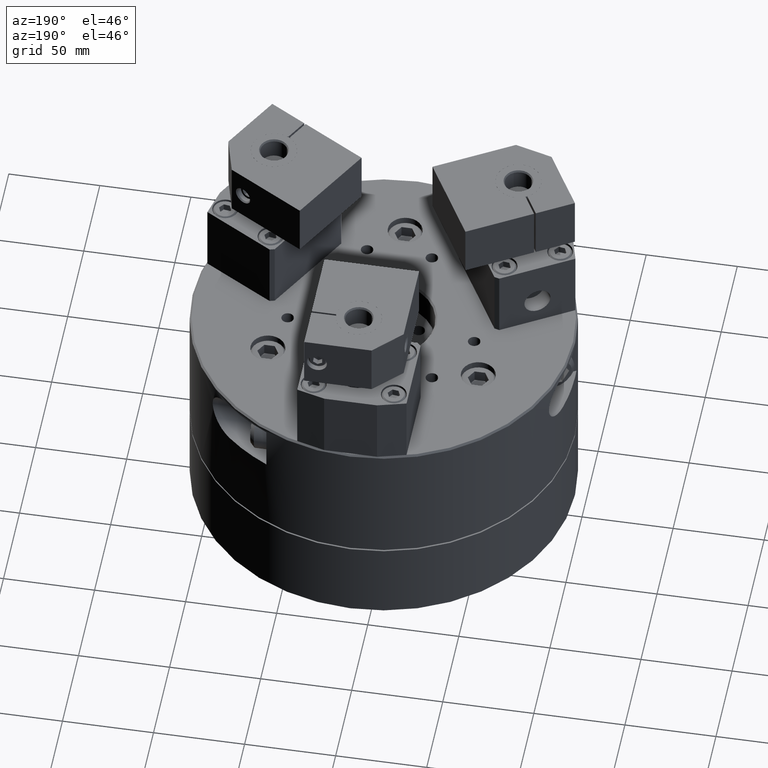
[diagram: clean part render]
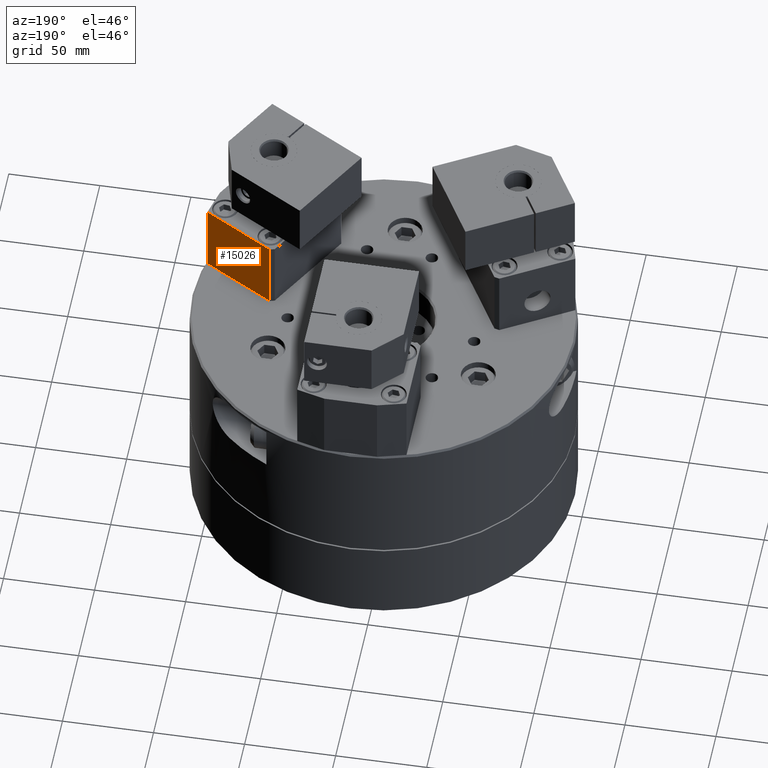
[diagram: same view with one face highlighted and labeled with its STEP entity id]
A machine part, auxiliary view. The second image highlights one B-rep face of the part: STEP entity #15026.
In plain terms, the highlighted planar face has unit normal (-0.5, -0.866, 0).
Its self-contained STEP definition (entity closure, byte-faithful):
#715=LINE('',#26237,#1555);
#725=LINE('',#26257,#1565);
#726=LINE('',#26259,#1566);
#727=LINE('',#26261,#1567);
#1555=VECTOR('',#21279,1000.);
#1565=VECTOR('',#21295,1000.);
#1566=VECTOR('',#21298,1000.);
#1567=VECTOR('',#21299,1000.);
#2197=PLANE('',#17210);
#6110=ORIENTED_EDGE('',*,*,#8312,.T.);
#6111=ORIENTED_EDGE('',*,*,#8322,.F.);
#6112=ORIENTED_EDGE('',*,*,#8323,.F.);
#6113=ORIENTED_EDGE('',*,*,#8324,.T.);
#8312=EDGE_CURVE('',#9816,#9815,#715,.T.);
#8322=EDGE_CURVE('',#9822,#9815,#725,.T.);
#8323=EDGE_CURVE('',#9823,#9822,#726,.T.);
#8324=EDGE_CURVE('',#9823,#9816,#727,.T.);
#9815=VERTEX_POINT('',#26236);
#9816=VERTEX_POINT('',#26238);
#9822=VERTEX_POINT('',#26256);
#9823=VERTEX_POINT('',#26260);
#11670=EDGE_LOOP('',(#6110,#6111,#6112,#6113));
#13475=FACE_BOUND('',#11670,.T.);
#15026=ADVANCED_FACE('',(#13475),#2197,.F.);
#17210=AXIS2_PLACEMENT_3D('',#26258,#21296,#21297);
#21279=DIRECTION('',(-0.866025403784437,0.500000000000003,0.));
#21295=DIRECTION('',(0.,0.,-1.));
#21296=DIRECTION('',(-0.500000000000003,-0.866025403784437,0.));
#21297=DIRECTION('',(0.,0.,-1.));
#21298=DIRECTION('',(-0.866025403784437,0.500000000000003,0.));
#21299=DIRECTION('',(0.,0.,-1.));
#26236=CARTESIAN_POINT('',(63.0644099100364,-1.76923788646702,73.));
#26237=CARTESIAN_POINT('',(101.036841774372,-23.692631645126,73.));
#26238=CARTESIAN_POINT('',(101.036841774372,-23.692631645126,73.));
#26256=CARTESIAN_POINT('',(63.0644099100364,-1.76923788646702,113.));
#26257=CARTESIAN_POINT('',(63.0644099100364,-1.76923788646702,113.));
#26258=CARTESIAN_POINT('',(101.036841774372,-23.692631645126,113.));
#26259=CARTESIAN_POINT('',(101.036841774372,-23.692631645126,113.));
#26260=CARTESIAN_POINT('',(101.036841774372,-23.692631645126,113.));
#26261=CARTESIAN_POINT('',(101.036841774372,-23.692631645126,113.));